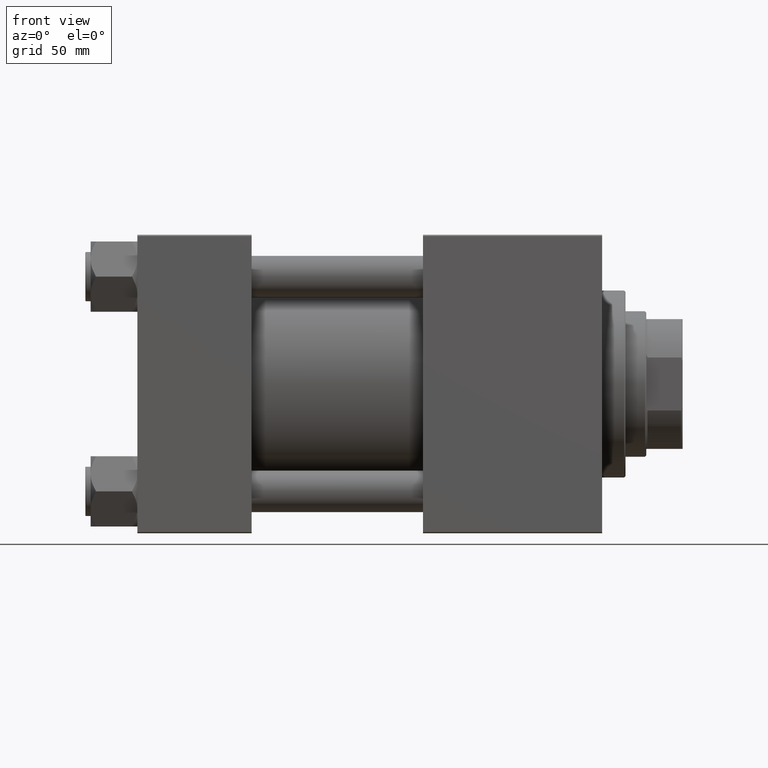
[diagram: clean part render]
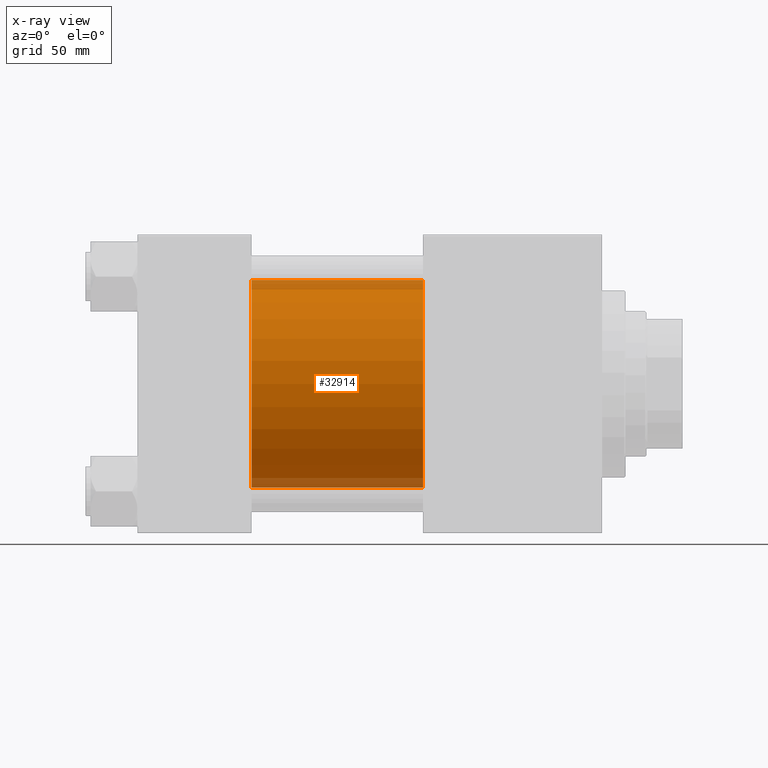
[diagram: x-ray — body ghosted, one internal face saturated and labeled with its STEP entity id]
A machine part, front view, then the same camera in x-ray: the body is ghosted and one INTERNAL B-rep face — a face not visible from any outside direction — is saturated and labeled: STEP entity #32914.
In plain terms, the highlighted cylindrical surface (partial cylindrical patch) has radius 40 mm, axis along (-1, -0, -0).
Its self-contained STEP definition (entity closure, byte-faithful):
#2137 = AXIS2_PLACEMENT_3D ( 'NONE', #14915, #32001, #19004 ) ;
#2240 = AXIS2_PLACEMENT_3D ( 'NONE', #18971, #29734, #10269 ) ;
#4387 = LINE ( 'NONE', #46664, #45986 ) ;
#4970 = DIRECTION ( 'NONE',  ( 0.000000000000000000, 0.000000000000000000, -1.000000000000000000 ) ) ;
#6218 = AXIS2_PLACEMENT_3D ( 'NONE', #20590, #13173, #4970 ) ;
#6911 = VERTEX_POINT ( 'NONE', #21181 ) ;
#7731 = CARTESIAN_POINT ( 'NONE',  ( 44.00000000000000000, -2.602085213965210642E-15, 40.00000000000000000 ) ) ;
#7997 = ORIENTED_EDGE ( 'NONE', *, *, #32725, .F. ) ;
#10269 = DIRECTION ( 'NONE',  ( 0.000000000000000000, 0.000000000000000000, -1.000000000000000000 ) ) ;
#10312 = CIRCLE ( 'NONE', #6218, 40.00000000000000000 ) ;
#10675 = LINE ( 'NONE', #26532, #24051 ) ;
#13173 = DIRECTION ( 'NONE',  ( 1.000000000000000000, 0.000000000000000000, 0.000000000000000000 ) ) ;
#14915 = CARTESIAN_POINT ( 'NONE',  ( 110.0000000000000000, -2.602085213965210642E-15, 0.000000000000000000 ) ) ;
#15107 = VERTEX_POINT ( 'NONE', #7731 ) ;
#18971 = CARTESIAN_POINT ( 'NONE',  ( 110.0000000000000000, -2.602085213965210642E-15, 0.000000000000000000 ) ) ;
#19004 = DIRECTION ( 'NONE',  ( 0.000000000000000000, 0.000000000000000000, 1.000000000000000000 ) ) ;
#19861 = EDGE_CURVE ( 'NONE', #38470, #49353, #4387, .T. ) ;
#20590 = CARTESIAN_POINT ( 'NONE',  ( 44.00000000000000000, -2.602085213965210642E-15, 0.000000000000000000 ) ) ;
#21181 = CARTESIAN_POINT ( 'NONE',  ( 110.0000000000000000, -2.602085213965210642E-15, 40.00000000000000000 ) ) ;
#24051 = VECTOR ( 'NONE', #40733, 1000.000000000000000 ) ;
#26532 = CARTESIAN_POINT ( 'NONE',  ( 110.0000000000000000, -2.602085213965210642E-15, 40.00000000000000000 ) ) ;
#29734 = DIRECTION ( 'NONE',  ( 1.000000000000000000, 0.000000000000000000, 0.000000000000000000 ) ) ;
#30825 = CIRCLE ( 'NONE', #2240, 40.00000000000000000 ) ;
#31519 = CARTESIAN_POINT ( 'NONE',  ( 110.0000000000000000, 2.296501982624201990E-15, -40.00000000000000000 ) ) ;
#32001 = DIRECTION ( 'NONE',  ( -1.000000000000000000, -0.000000000000000000, -0.000000000000000000 ) ) ;
#32725 = EDGE_CURVE ( 'NONE', #15107, #49353, #10312, .T. ) ;
#32914 = ADVANCED_FACE ( 'NONE', ( #49758 ), #38468, .F. ) ;
#33279 = ORIENTED_EDGE ( 'NONE', *, *, #35015, .T. ) ;
#35015 = EDGE_CURVE ( 'NONE', #6911, #38470, #30825, .T. ) ;
#36559 = CARTESIAN_POINT ( 'NONE',  ( 44.00000000000000000, 2.296501982624201990E-15, -40.00000000000000000 ) ) ;
#37720 = ORIENTED_EDGE ( 'NONE', *, *, #42646, .F. ) ;
#38468 = CYLINDRICAL_SURFACE ( 'NONE', #2137, 40.00000000000000000 ) ;
#38470 = VERTEX_POINT ( 'NONE', #31519 ) ;
#38957 = DIRECTION ( 'NONE',  ( -1.000000000000000000, -0.000000000000000000, -0.000000000000000000 ) ) ;
#40733 = DIRECTION ( 'NONE',  ( -1.000000000000000000, -0.000000000000000000, -0.000000000000000000 ) ) ;
#42646 = EDGE_CURVE ( 'NONE', #6911, #15107, #10675, .T. ) ;
#43149 = EDGE_LOOP ( 'NONE', ( #33279, #50407, #7997, #37720 ) ) ;
#45986 = VECTOR ( 'NONE', #38957, 1000.000000000000000 ) ;
#46664 = CARTESIAN_POINT ( 'NONE',  ( 110.0000000000000000, 2.296501982624201990E-15, -40.00000000000000000 ) ) ;
#49353 = VERTEX_POINT ( 'NONE', #36559 ) ;
#49758 = FACE_OUTER_BOUND ( 'NONE', #43149, .T. ) ;
#50407 = ORIENTED_EDGE ( 'NONE', *, *, #19861, .T. ) ;